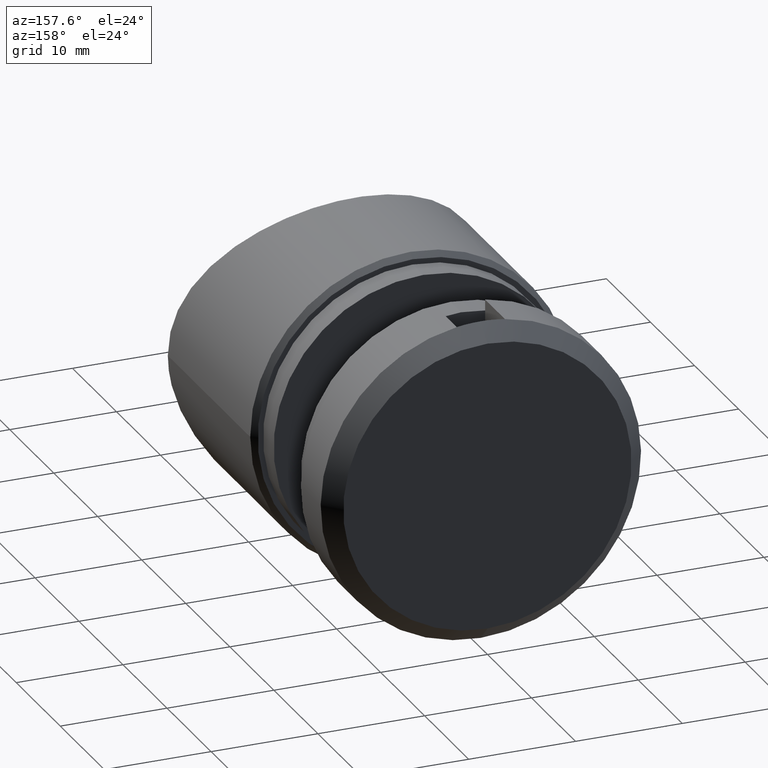
[diagram: clean part render]
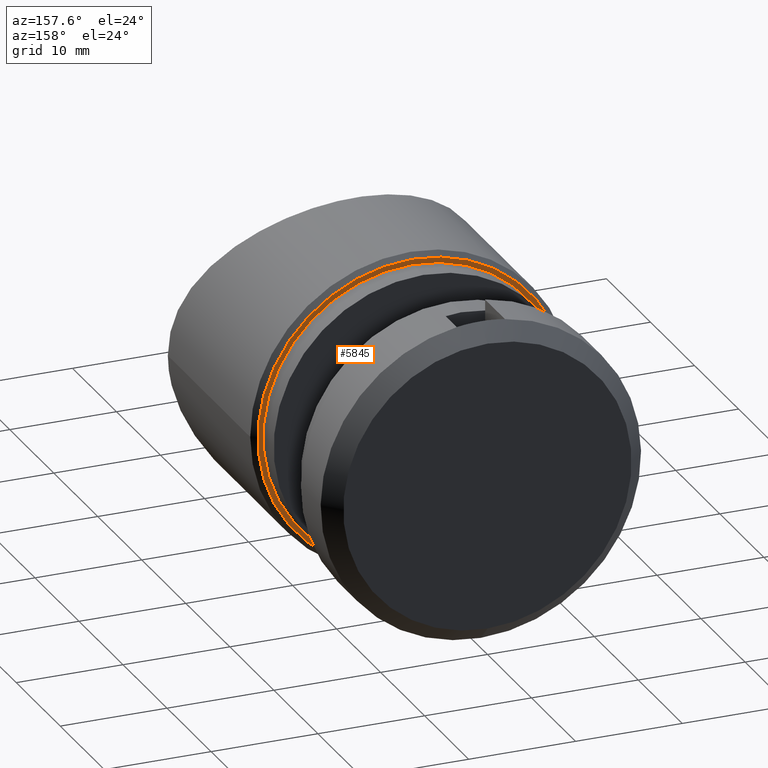
[diagram: same view with one face highlighted and labeled with its STEP entity id]
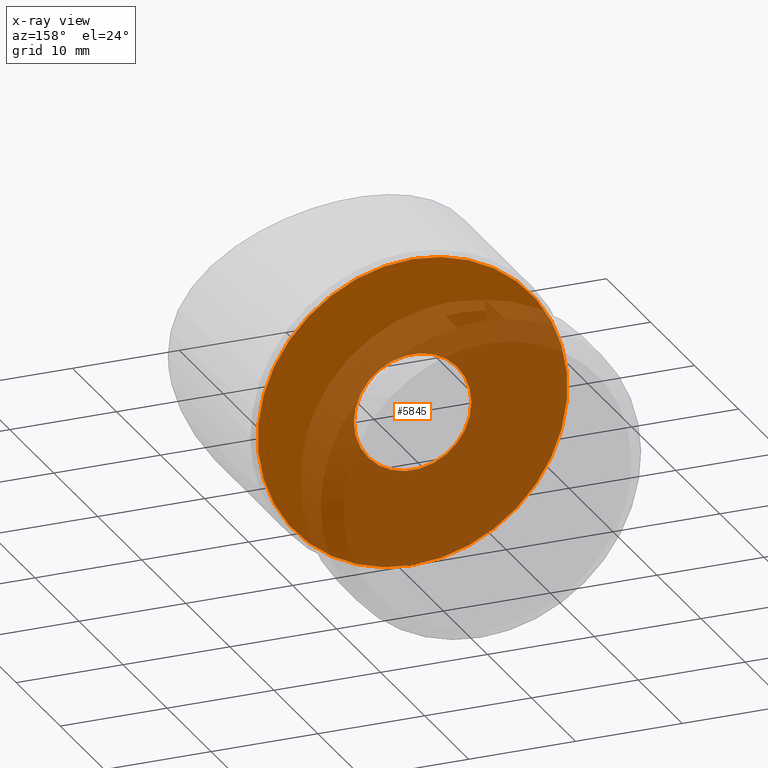
[diagram: x-ray of the same camera — body ghosted, the highlighted face saturated]
A machine part, auxiliary view. The second image highlights one B-rep face of the part: STEP entity #5845.
The next image is the same camera in x-ray: the body ghosted, the highlighted face saturated — about 69% of this face is hidden behind the body in this view.
In plain terms, the highlighted planar face has unit normal (0, 1, 0).
Its self-contained STEP definition (entity closure, byte-faithful):
#612 = DIRECTION ( 'NONE',  ( 1.650797095189058802E-31, 1.000000000000000000, 0.000000000000000000 ) ) ;
#949 = FACE_OUTER_BOUND ( 'NONE', #8997, .T. ) ;
#1259 = CARTESIAN_POINT ( 'NONE',  ( -5.499999999999991118, 12.99999999999999822, 6.735557395310431176E-16 ) ) ;
#1303 = CARTESIAN_POINT ( 'NONE',  ( -2.571758278209441267E-15, 12.99999999999999822, 0.000000000000000000 ) ) ;
#1590 = VERTEX_POINT ( 'NONE', #1259 ) ;
#1969 = AXIS2_PLACEMENT_3D ( 'NONE', #1303, #12980, #9801 ) ;
#2278 = CIRCLE ( 'NONE', #6135, 5.499999999999988454 ) ;
#2520 = CIRCLE ( 'NONE', #10150, 14.50000000000000178 ) ;
#2765 = VERTEX_POINT ( 'NONE', #7730 ) ;
#2775 = PLANE ( 'NONE',  #3918 ) ;
#2955 = EDGE_CURVE ( 'NONE', #7260, #4837, #6529, .T. ) ;
#3472 = EDGE_CURVE ( 'NONE', #4837, #7260, #2520, .T. ) ;
#3632 = DIRECTION ( 'NONE',  ( 1.000000000000000000, 0.000000000000000000, 0.000000000000000000 ) ) ;
#3918 = AXIS2_PLACEMENT_3D ( 'NONE', #13263, #612, #5989 ) ;
#4335 = ORIENTED_EDGE ( 'NONE', *, *, #8609, .T. ) ;
#4837 = VERTEX_POINT ( 'NONE', #8033 ) ;
#5845 = ADVANCED_FACE ( 'NONE', ( #949, #6618 ), #2775, .T. ) ;
#5989 = DIRECTION ( 'NONE',  ( -1.000000000000000000, 1.650797095189058802E-31, 0.000000000000000000 ) ) ;
#6135 = AXIS2_PLACEMENT_3D ( 'NONE', #6983, #7803, #3632 ) ;
#6196 = AXIS2_PLACEMENT_3D ( 'NONE', #13284, #8042, #7035 ) ;
#6529 = CIRCLE ( 'NONE', #6196, 14.50000000000000178 ) ;
#6618 = FACE_BOUND ( 'NONE', #9952, .T. ) ;
#6983 = CARTESIAN_POINT ( 'NONE',  ( -2.571758278209441267E-15, 12.99999999999999822, 0.000000000000000000 ) ) ;
#7035 = DIRECTION ( 'NONE',  ( -1.000000000000000000, 0.000000000000000000, 0.000000000000000000 ) ) ;
#7238 = CIRCLE ( 'NONE', #1969, 5.499999999999988454 ) ;
#7260 = VERTEX_POINT ( 'NONE', #10777 ) ;
#7422 = EDGE_CURVE ( 'NONE', #2765, #1590, #2278, .T. ) ;
#7730 = CARTESIAN_POINT ( 'NONE',  ( 5.499999999999985789, 12.99999999999999822, 0.000000000000000000 ) ) ;
#7803 = DIRECTION ( 'NONE',  ( -1.650797095189058802E-31, -1.000000000000000000, -0.000000000000000000 ) ) ;
#8033 = CARTESIAN_POINT ( 'NONE',  ( -7.654042494670951690E-16, 12.99999999999999822, 14.50000000000000178 ) ) ;
#8042 = DIRECTION ( 'NONE',  ( 1.650797095189058802E-31, 1.000000000000000000, 0.000000000000000000 ) ) ;
#8482 = ORIENTED_EDGE ( 'NONE', *, *, #3472, .T. ) ;
#8609 = EDGE_CURVE ( 'NONE', #1590, #2765, #7238, .T. ) ;
#8997 = EDGE_LOOP ( 'NONE', ( #10832, #8482 ) ) ;
#9801 = DIRECTION ( 'NONE',  ( 1.000000000000000000, 0.000000000000000000, 0.000000000000000000 ) ) ;
#9952 = EDGE_LOOP ( 'NONE', ( #11145, #4335 ) ) ;
#10106 = CARTESIAN_POINT ( 'NONE',  ( -2.571758278209441267E-15, 12.99999999999999822, 0.000000000000000000 ) ) ;
#10150 = AXIS2_PLACEMENT_3D ( 'NONE', #10106, #11972, #12303 ) ;
#10777 = CARTESIAN_POINT ( 'NONE',  ( -2.571758278209441267E-15, 12.99999999999999822, -14.50000000000000178 ) ) ;
#10832 = ORIENTED_EDGE ( 'NONE', *, *, #2955, .T. ) ;
#11145 = ORIENTED_EDGE ( 'NONE', *, *, #7422, .T. ) ;
#11972 = DIRECTION ( 'NONE',  ( 1.650797095189058802E-31, 1.000000000000000000, 0.000000000000000000 ) ) ;
#12303 = DIRECTION ( 'NONE',  ( -1.000000000000000000, 0.000000000000000000, 0.000000000000000000 ) ) ;
#12980 = DIRECTION ( 'NONE',  ( -1.650797095189058802E-31, -1.000000000000000000, -0.000000000000000000 ) ) ;
#13263 = CARTESIAN_POINT ( 'NONE',  ( 15.00000000000000000, 12.99999999999999822, 0.000000000000000000 ) ) ;
#13284 = CARTESIAN_POINT ( 'NONE',  ( -2.571758278209441267E-15, 12.99999999999999822, 0.000000000000000000 ) ) ;